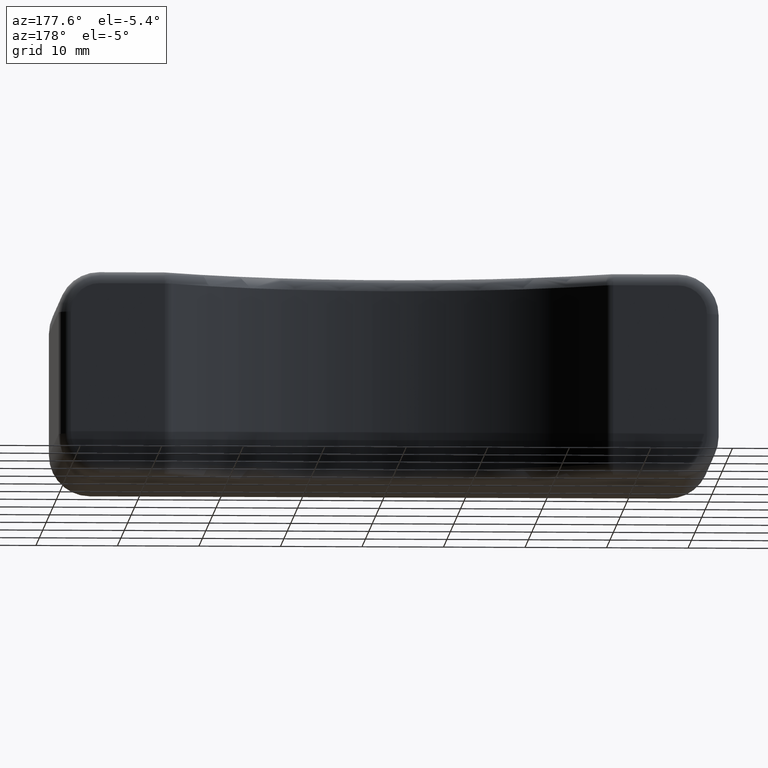
[diagram: clean part render]
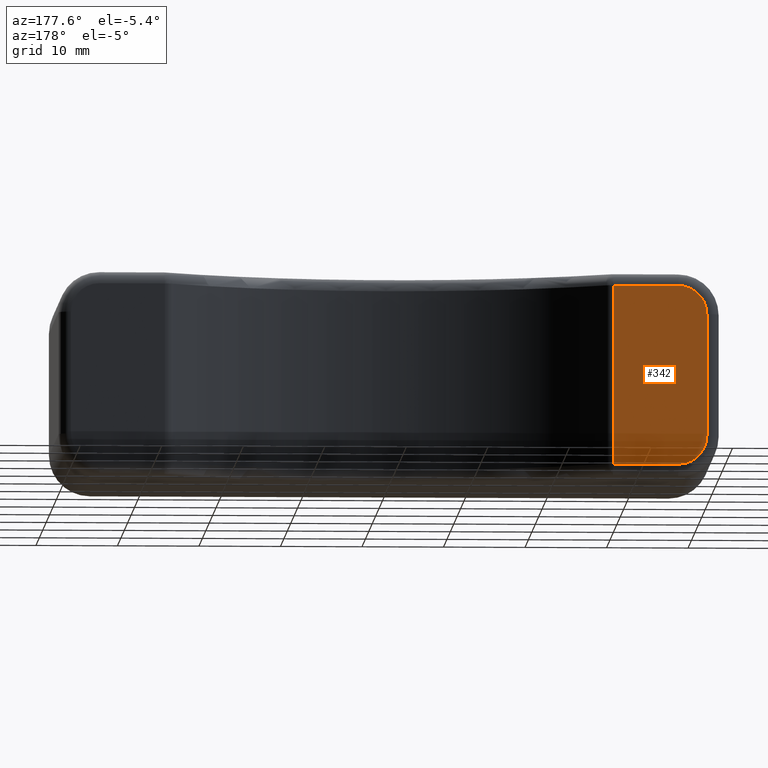
[diagram: same view with one face highlighted and labeled with its STEP entity id]
A machine part, auxiliary view. The second image highlights one B-rep face of the part: STEP entity #342.
In plain terms, the highlighted planar face has unit normal (0, 1, 0).
Its self-contained STEP definition (entity closure, byte-faithful):
#342 = ADVANCED_FACE( '', ( #1134 ), #1135, .T. );
#1134 = FACE_OUTER_BOUND( '', #2118, .T. );
#1135 = PLANE( '', #2119 );
#2118 = EDGE_LOOP( '', ( #4766, #4767, #4768, #4769, #4770, #4771 ) );
#2119 = AXIS2_PLACEMENT_3D( '', #4772, #4773, #4774 );
#4766 = ORIENTED_EDGE( '', *, *, #6602, .T. );
#4767 = ORIENTED_EDGE( '', *, *, #6599, .T. );
#4768 = ORIENTED_EDGE( '', *, *, #6594, .T. );
#4769 = ORIENTED_EDGE( '', *, *, #6612, .T. );
#4770 = ORIENTED_EDGE( '', *, *, #6615, .T. );
#4771 = ORIENTED_EDGE( '', *, *, #6618, .T. );
#4772 = CARTESIAN_POINT( '', ( -27.0166615258066, 29.0000000000000, -12.5000000000000 ) );
#4773 = DIRECTION( '', ( 0.000000000000000, 1.00000000000000, 0.000000000000000 ) );
#4774 = DIRECTION( '', ( 1.00000000000000, 0.000000000000000, 0.000000000000000 ) );
#6594 = EDGE_CURVE( '', #8134, #8132, #8135, .T. );
#6599 = EDGE_CURVE( '', #8139, #8134, #8143, .T. );
#6602 = EDGE_CURVE( '', #8144, #8139, #8148, .T. );
#6612 = EDGE_CURVE( '', #8132, #8161, #8163, .T. );
#6615 = EDGE_CURVE( '', #8161, #8165, #8167, .F. );
#6618 = EDGE_CURVE( '', #8165, #8144, #8171, .F. );
#8132 = VERTEX_POINT( '', #10438 );
#8134 = VERTEX_POINT( '', #10440 );
#8135 = LINE( '', #10441, #10442 );
#8139 = VERTEX_POINT( '', #10447 );
#8143 = CIRCLE( '', #10451, 3.50000000000000 );
#8144 = VERTEX_POINT( '', #10452 );
#8148 = LINE( '', #10457, #10458 );
#8161 = VERTEX_POINT( '', #10474 );
#8163 = CIRCLE( '', #10476, 3.50000000000000 );
#8165 = VERTEX_POINT( '', #10478 );
#8167 = LINE( '', #10480, #10481 );
#8171 = LINE( '', #10486, #10487 );
#10438 = CARTESIAN_POINT( '', ( -39.0000000000000, 29.0000000000000, 7.50000000000000 ) );
#10440 = CARTESIAN_POINT( '', ( -39.0000000000000, 29.0000000000000, -7.50000000000000 ) );
#10441 = CARTESIAN_POINT( '', ( -39.0000000000000, 29.0000000000000, -12.5000000000000 ) );
#10442 = VECTOR( '', #12596, 1000.00000000000 );
#10447 = CARTESIAN_POINT( '', ( -35.5000000000000, 29.0000000000000, -11.0000000000000 ) );
#10451 = AXIS2_PLACEMENT_3D( '', #12607, #12608, #12609 );
#10452 = CARTESIAN_POINT( '', ( -27.5118156434649, 29.0000000000000, -11.0000000000000 ) );
#10457 = CARTESIAN_POINT( '', ( -27.0166615258066, 29.0000000000000, -11.0000000000000 ) );
#10458 = VECTOR( '', #12614, 1000.00000000000 );
#10474 = CARTESIAN_POINT( '', ( -35.5000000000000, 29.0000000000000, 11.0000000000000 ) );
#10476 = AXIS2_PLACEMENT_3D( '', #12636, #12637, #12638 );
#10478 = CARTESIAN_POINT( '', ( -27.5118156434649, 29.0000000000000, 11.0000000000000 ) );
#10480 = CARTESIAN_POINT( '', ( -27.0166615258066, 29.0000000000000, 11.0000000000000 ) );
#10481 = VECTOR( '', #12645, 1000.00000000000 );
#10486 = CARTESIAN_POINT( '', ( -27.5118156434649, 29.0000000000000, -12.5000000000000 ) );
#10487 = VECTOR( '', #12650, 1000.00000000000 );
#12596 = DIRECTION( '', ( 0.000000000000000, 0.000000000000000, 1.00000000000000 ) );
#12607 = CARTESIAN_POINT( '', ( -35.5000000000000, 29.0000000000000, -7.50000000000000 ) );
#12608 = DIRECTION( '', ( 0.000000000000000, 1.00000000000000, 0.000000000000000 ) );
#12609 = DIRECTION( '', ( 0.000000000000000, 0.000000000000000, 1.00000000000000 ) );
#12614 = DIRECTION( '', ( -1.00000000000000, 0.000000000000000, 0.000000000000000 ) );
#12636 = CARTESIAN_POINT( '', ( -35.5000000000000, 29.0000000000000, 7.50000000000000 ) );
#12637 = DIRECTION( '', ( 0.000000000000000, 1.00000000000000, 0.000000000000000 ) );
#12638 = DIRECTION( '', ( 0.000000000000000, 0.000000000000000, 1.00000000000000 ) );
#12645 = DIRECTION( '', ( -1.00000000000000, 0.000000000000000, 0.000000000000000 ) );
#12650 = DIRECTION( '', ( 0.000000000000000, 0.000000000000000, 1.00000000000000 ) );